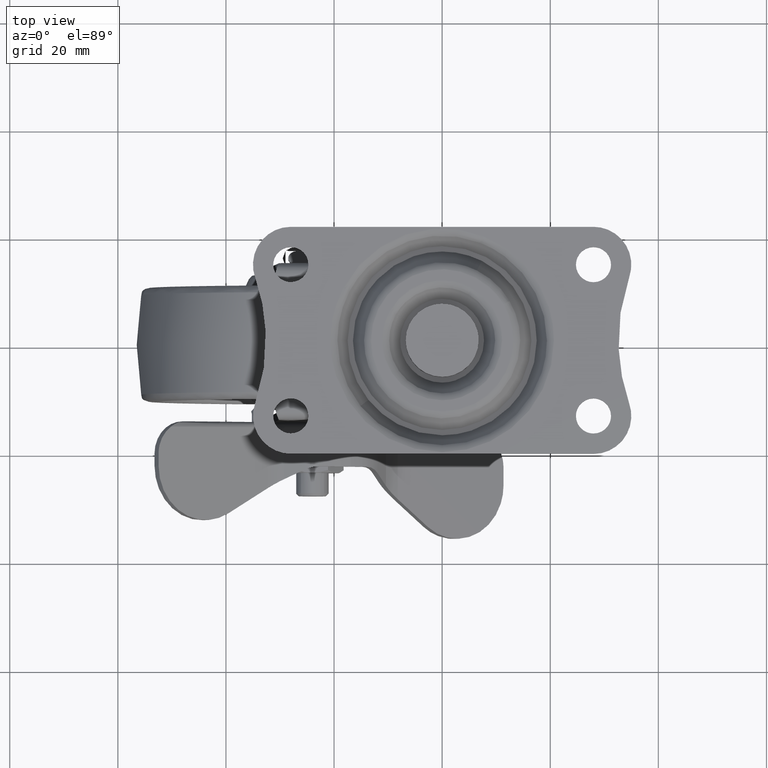
[diagram: clean part render]
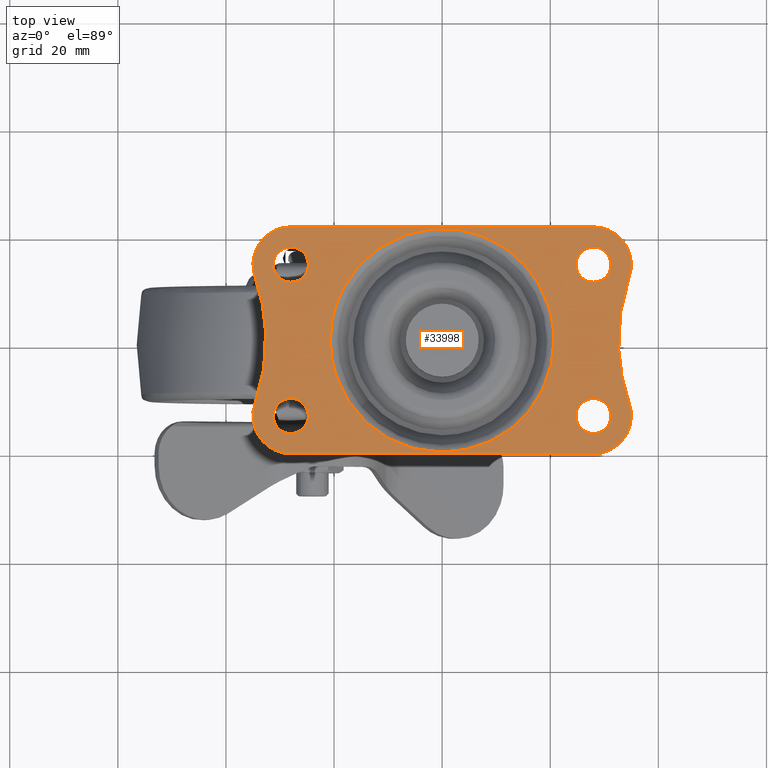
[diagram: same view with one face highlighted and labeled with its STEP entity id]
A machine part, top view. The second image highlights one B-rep face of the part: STEP entity #33998.
In plain terms, the highlighted face is a freeform B-spline surface patch.
Its self-contained STEP definition (entity closure, byte-faithful):
#27228=CARTESIAN_POINT('',(-30.098661759313249,16.481556132544569,1.499999999999946));
#27229=VERTEX_POINT('',#27228);
#27235=CARTESIAN_POINT('',(-31.249999800000001,14.0,1.499999999999946));
#27236=VERTEX_POINT('',#27235);
#27237=CARTESIAN_POINT('',(-30.098661759313249,16.481556132544569,1.499999999999946));
#27238=CARTESIAN_POINT('',(-30.289594237411581,16.320154293249061,1.499999999999947));
#27239=CARTESIAN_POINT('',(-30.623752231378621,15.963778604898430,1.499999999999943));
#27240=CARTESIAN_POINT('',(-30.974920071749391,15.363702581150390,1.499999999999943));
#27241=CARTESIAN_POINT('',(-31.197124987303312,14.705887535537650,1.499999999999956));
#27242=CARTESIAN_POINT('',(-31.250053074161389,14.250012150224620,1.499999999999941));
#27243=CARTESIAN_POINT('',(-31.249999800000001,14.0,1.499999999999946));
#27244=B_SPLINE_CURVE_WITH_KNOTS('',3,(#27237,#27238,#27239,#27240,#27241,#27242,#27243),.UNSPECIFIED.,.F.,.U.,(4,1,1,1,4),(0.000000054423092,0.750026321992885,1.455906029096063,2.073600820210960,2.823627087781163),.UNSPECIFIED.);
#27245=EDGE_CURVE('',#27229,#27236,#27244,.T.);
#27247=CARTESIAN_POINT('',(-27.999997928806089,10.750000200000660,1.499999999999946));
#27248=VERTEX_POINT('',#27247);
#27249=CARTESIAN_POINT('',(-31.249999800000001,14.0,1.499999999999946));
#27250=CARTESIAN_POINT('',(-31.250184525599611,13.654315834987971,1.499999999999946));
#27251=CARTESIAN_POINT('',(-31.168629431308140,13.149254880770741,1.499999999999947));
#27252=CARTESIAN_POINT('',(-30.893079888065120,12.484195588004100,1.499999999999947));
#27253=CARTESIAN_POINT('',(-30.578643457823169,11.987597755424479,1.499999999999945));
#27254=CARTESIAN_POINT('',(-30.136500463179491,11.523209991700501,1.499999999999948));
#27255=CARTESIAN_POINT('',(-29.612254228586071,11.153992996147981,1.499999999999942));
#27256=CARTESIAN_POINT('',(-28.903919822883601,10.839956242095861,1.499999999999953));
#27257=CARTESIAN_POINT('',(-28.345680067237780,10.749811561309039,1.499999999999937));
#27258=CARTESIAN_POINT('',(-27.999997928806089,10.750000200000660,1.499999999999946));
#27259=B_SPLINE_CURVE_WITH_KNOTS('',3,(#27249,#27250,#27251,#27252,#27253,#27254,#27255,#27256,#27257,#27258),.UNSPECIFIED.,.F.,.U.,(4,1,1,1,1,1,1,4),(0.000000086994697,1.036990327624215,1.515618314076126,2.153791717554028,2.791894719708033,3.430051568851688,4.068226782471074,5.105217022309462),.UNSPECIFIED.);
#27260=EDGE_CURVE('',#27236,#27248,#27259,.T.);
#27262=CARTESIAN_POINT('',(-24.750000199999999,14.0,1.499999999999946));
#27263=VERTEX_POINT('',#27262);
#27264=CARTESIAN_POINT('',(-27.999997928806089,10.750000200000660,1.499999999999946));
#27265=CARTESIAN_POINT('',(-27.654315511227459,10.749812278349269,1.499999999999945));
#27266=CARTESIAN_POINT('',(-27.096079022728311,10.839954147837460,1.499999999999947));
#27267=CARTESIAN_POINT('',(-26.387738840174130,11.153997100902471,1.499999999999946));
#27268=CARTESIAN_POINT('',(-25.863501423968259,11.523205239792439,1.499999999999949));
#27269=CARTESIAN_POINT('',(-25.421350830321810,11.987600571720860,1.499999999999942));
#27270=CARTESIAN_POINT('',(-25.106918182389879,12.484195088063791,1.499999999999956));
#27271=CARTESIAN_POINT('',(-24.831370970281601,13.149254035125100,1.499999999999940));
#27272=CARTESIAN_POINT('',(-24.749814484360758,13.654317157090130,1.499999999999949));
#27273=CARTESIAN_POINT('',(-24.750000199999999,14.0,1.499999999999946));
#27274=B_SPLINE_CURVE_WITH_KNOTS('',3,(#27264,#27265,#27266,#27267,#27268,#27269,#27270,#27271,#27272,#27273),.UNSPECIFIED.,.F.,.U.,(4,1,1,1,1,1,1,4),(0.000000089835869,1.036989855547969,1.675164777407963,2.313321333277914,2.951424042725895,3.589597153540688,4.068224921029611,5.105214687532925),.UNSPECIFIED.);
#27275=EDGE_CURVE('',#27248,#27263,#27274,.T.);
#27277=CARTESIAN_POINT('',(-25.642533914758179,16.237151983182429,1.499999999999946));
#27278=VERTEX_POINT('',#27277);
#27279=CARTESIAN_POINT('',(-24.750000199999999,14.0,1.499999999999946));
#27280=CARTESIAN_POINT('',(-24.749812915471310,14.334165562678439,1.499999999999946));
#27281=CARTESIAN_POINT('',(-24.834026930013131,14.873795731367821,1.499999999999947));
#27282=CARTESIAN_POINT('',(-25.158316644193729,15.633702982772739,1.499999999999946));
#27283=CARTESIAN_POINT('',(-25.447844304890332,16.032118625284639,1.499999999999945));
#27284=CARTESIAN_POINT('',(-25.642533914758179,16.237151983182429,1.499999999999946));
#27285=B_SPLINE_CURVE_WITH_KNOTS('',3,(#27279,#27280,#27281,#27282,#27283,#27284),.UNSPECIFIED.,.F.,.U.,(4,1,1,4),(0.000000029991058,1.002438272913163,1.619299686799069,2.467516887361315),.UNSPECIFIED.);
#27286=EDGE_CURVE('',#27263,#27278,#27285,.T.);
#27371=CARTESIAN_POINT('',(-28.000002071193940,17.249999799999340,1.499999999999946));
#27372=VERTEX_POINT('',#27371);
#27373=CARTESIAN_POINT('',(-25.642533914758179,16.237151983182429,1.499999999999946));
#27374=CARTESIAN_POINT('',(-25.812715970527329,16.416558056461071,1.499999999999950));
#27375=CARTESIAN_POINT('',(-26.173112256698939,16.718425344399531,1.499999999999940));
#27376=CARTESIAN_POINT('',(-26.956197425681300,17.128107174417458,1.499999999999954));
#27377=CARTESIAN_POINT('',(-27.587795603666478,17.250424369698319,1.499999999999939));
#27378=CARTESIAN_POINT('',(-28.000002071193940,17.249999799999340,1.499999999999946));
#27379=B_SPLINE_CURVE_WITH_KNOTS('',3,(#27373,#27374,#27375,#27376,#27377,#27378),.UNSPECIFIED.,.F.,.U.,(4,1,1,4),(0.000000023109830,0.741853484221563,1.401278179557500,2.637701058364158),.UNSPECIFIED.);
#27380=EDGE_CURVE('',#27278,#27372,#27379,.T.);
#27382=CARTESIAN_POINT('',(-28.000002071193940,17.249999799999340,1.499999999999946));
#27383=CARTESIAN_POINT('',(-28.213892175693019,17.250021494945042,1.499999999999946));
#27384=CARTESIAN_POINT('',(-28.665423814772701,17.205277089497809,1.499999999999948));
#27385=CARTESIAN_POINT('',(-29.394725705898889,16.974042795621362,1.499999999999943));
#27386=CARTESIAN_POINT('',(-29.862817059486641,16.681141609984468,1.499999999999947));
#27387=CARTESIAN_POINT('',(-30.098661759313249,16.481556132544569,1.499999999999946));
#27388=B_SPLINE_CURVE_WITH_KNOTS('',3,(#27382,#27383,#27384,#27385,#27386,#27387),.UNSPECIFIED.,.F.,.U.,(4,1,1,4),(0.000000032594363,0.641680229335874,1.354642996717356,2.281526408582084),.UNSPECIFIED.);
#27389=EDGE_CURVE('',#27372,#27229,#27388,.T.);
#27435=CARTESIAN_POINT('',(-30.098661759313249,-11.518451867455290,1.499999999999946));
#27436=VERTEX_POINT('',#27435);
#27442=CARTESIAN_POINT('',(-31.249999800000001,-14.000007999999861,1.499999999999946));
#27443=VERTEX_POINT('',#27442);
#27444=CARTESIAN_POINT('',(-30.098661759313249,-11.518451867455290,1.499999999999946));
#27445=CARTESIAN_POINT('',(-30.267107771181099,-11.660883446761471,1.499999999999946));
#27446=CARTESIAN_POINT('',(-30.605661424508920,-12.012113388912050,1.499999999999948));
#27447=CARTESIAN_POINT('',(-30.965468887856410,-12.608308317754400,1.499999999999943));
#27448=CARTESIAN_POINT('',(-31.197128128382509,-13.294119689958480,1.499999999999956));
#27449=CARTESIAN_POINT('',(-31.250051592581219,-13.749996320551890,1.499999999999939));
#27450=CARTESIAN_POINT('',(-31.249999800000001,-14.000007999999861,1.499999999999946));
#27451=B_SPLINE_CURVE_WITH_KNOTS('',3,(#27444,#27445,#27446,#27447,#27448,#27449,#27450),.UNSPECIFIED.,.F.,.U.,(4,1,1,1,4),(0.000000054425447,0.661787303533556,1.455906029096571,2.073600820211106,2.823627087781160),.UNSPECIFIED.);
#27452=EDGE_CURVE('',#27436,#27443,#27451,.T.);
#27454=CARTESIAN_POINT('',(-27.999997928806089,-17.250007799999199,1.499999999999946));
#27455=VERTEX_POINT('',#27454);
#27456=CARTESIAN_POINT('',(-31.249999800000001,-14.000007999999861,1.499999999999946));
#27457=CARTESIAN_POINT('',(-31.250024498893080,-14.212710222109090,1.499999999999945));
#27458=CARTESIAN_POINT('',(-31.205478234679500,-14.664721032946950,1.499999999999947));
#27459=CARTESIAN_POINT('',(-30.987390759531550,-15.353302889201570,1.499999999999946));
#27460=CARTESIAN_POINT('',(-30.560490652122930,-16.065709442088309,1.499999999999948));
#27461=CARTESIAN_POINT('',(-29.976489319201921,-16.621677681362410,1.499999999999942));
#27462=CARTESIAN_POINT('',(-29.302278756384471,-17.003532988793360,1.499999999999950));
#27463=CARTESIAN_POINT('',(-28.664709948475849,-17.205488209646440,1.499999999999953));
#27464=CARTESIAN_POINT('',(-28.212700803627779,-17.250032910567370,1.499999999999929));
#27465=CARTESIAN_POINT('',(-27.999997928806089,-17.250007799999199,1.499999999999946));
#27466=B_SPLINE_CURVE_WITH_KNOTS('',3,(#27456,#27457,#27458,#27459,#27460,#27461,#27462,#27463,#27464,#27465),.UNSPECIFIED.,.F.,.U.,(4,1,1,1,1,1,1,4),(0.000000086997925,0.638124658410064,1.356074064954921,2.153791717555712,3.110962394410122,3.749143044737871,4.467092451277877,5.105217022309413),.UNSPECIFIED.);
#27467=EDGE_CURVE('',#27443,#27455,#27466,.T.);
#27469=CARTESIAN_POINT('',(-24.750000199999999,-14.000007999999861,1.499999999999946));
#27470=VERTEX_POINT('',#27469);
#27471=CARTESIAN_POINT('',(-27.999997928806089,-17.250007799999199,1.499999999999946));
#27472=CARTESIAN_POINT('',(-27.707516701486341,-17.250104416484469,1.499999999999947));
#27473=CARTESIAN_POINT('',(-27.202369066619479,-17.181340585061541,1.499999999999947));
#27474=CARTESIAN_POINT('',(-26.579205634243358,-16.940909266713060,1.499999999999946));
#27475=CARTESIAN_POINT('',(-25.984568161577162,-16.584612777350831,1.499999999999947));
#27476=CARTESIAN_POINT('',(-25.478433132207030,-16.102791430963549,1.499999999999943));
#27477=CARTESIAN_POINT('',(-25.106934802206951,-15.515794464587310,1.499999999999950));
#27478=CARTESIAN_POINT('',(-24.831372623470980,-14.850751233366910,1.499999999999946));
#27479=CARTESIAN_POINT('',(-24.749813946070990,-14.345691775458979,1.499999999999946));
#27480=CARTESIAN_POINT('',(-24.750000199999999,-14.000007999999861,1.499999999999946));
#27481=B_SPLINE_CURVE_WITH_KNOTS('',3,(#27471,#27472,#27473,#27474,#27475,#27476,#27477,#27478,#27479,#27480),.UNSPECIFIED.,.F.,.U.,(4,1,1,1,1,1,1,4),(0.000000089835841,0.877442701142752,1.515617622918524,1.994253805430586,2.951424042725838,3.589597153540647,4.068224921029596,5.105214687532926),.UNSPECIFIED.);
#27482=EDGE_CURVE('',#27455,#27470,#27481,.T.);
#27484=CARTESIAN_POINT('',(-25.642533914758179,-11.762856016817430,1.499999999999946));
#27485=VERTEX_POINT('',#27484);
#27486=CARTESIAN_POINT('',(-24.750000199999999,-14.000007999999861,1.499999999999946));
#27487=CARTESIAN_POINT('',(-24.749920988199420,-13.717266933189009,1.499999999999948));
#27488=CARTESIAN_POINT('',(-24.820872001588430,-13.177559219943269,1.499999999999944));
#27489=CARTESIAN_POINT('',(-25.127792950922089,-12.408218243198659,1.499999999999947));
#27490=CARTESIAN_POINT('',(-25.447860745877801,-11.967901674671070,1.499999999999947));
#27491=CARTESIAN_POINT('',(-25.642533914758179,-11.762856016817430,1.499999999999946));
#27492=B_SPLINE_CURVE_WITH_KNOTS('',3,(#27486,#27487,#27488,#27489,#27490,#27491),.UNSPECIFIED.,.F.,.U.,(4,1,1,4),(0.000000029990713,0.848217230607003,1.619299686798971,2.467516887361312),.UNSPECIFIED.);
#27493=EDGE_CURVE('',#27470,#27485,#27492,.T.);
#27577=CARTESIAN_POINT('',(-28.000002071193940,-10.750008200000520,1.499999999999946));
#27578=VERTEX_POINT('',#27577);
#27579=CARTESIAN_POINT('',(-25.642533914758179,-11.762856016817430,1.499999999999946));
#27580=CARTESIAN_POINT('',(-25.812716261999221,-11.583448340737000,1.499999999999949));
#27581=CARTESIAN_POINT('',(-26.173112427896740,-11.281583253363159,1.499999999999942));
#27582=CARTESIAN_POINT('',(-26.956197747361930,-10.871900470533649,1.499999999999953));
#27583=CARTESIAN_POINT('',(-27.587794571794561,-10.749583842618760,1.499999999999942));
#27584=CARTESIAN_POINT('',(-28.000002071193940,-10.750008200000520,1.499999999999946));
#27585=B_SPLINE_CURVE_WITH_KNOTS('',3,(#27579,#27580,#27581,#27582,#27583,#27584),.UNSPECIFIED.,.F.,.U.,(4,1,1,4),(0.000000023110223,0.741853484221908,1.401278179557704,2.637701058364167),.UNSPECIFIED.);
#27586=EDGE_CURVE('',#27485,#27578,#27585,.T.);
#27588=CARTESIAN_POINT('',(-28.000002071193940,-10.750008200000520,1.499999999999946));
#27589=CARTESIAN_POINT('',(-28.261424753598209,-10.749964186063711,1.499999999999946));
#27590=CARTESIAN_POINT('',(-28.808024957539981,-10.816267383801870,1.499999999999948));
#27591=CARTESIAN_POINT('',(-29.522385054004690,-11.095751268702010,1.499999999999946));
#27592=CARTESIAN_POINT('',(-29.935354925129239,-11.380328294928940,1.499999999999946));
#27593=CARTESIAN_POINT('',(-30.098661759313249,-11.518451867455290,1.499999999999946));
#27594=B_SPLINE_CURVE_WITH_KNOTS('',3,(#27588,#27589,#27590,#27591,#27592,#27593),.UNSPECIFIED.,.F.,.U.,(4,1,1,4),(0.000000032594146,0.784282458853431,1.639846211801305,2.281526408582081),.UNSPECIFIED.);
#27595=EDGE_CURVE('',#27578,#27436,#27594,.T.);
#27641=CARTESIAN_POINT('',(25.901338240686758,16.481556132544569,1.499999999999946));
#27642=VERTEX_POINT('',#27641);
#27648=CARTESIAN_POINT('',(24.750000199999999,14.0,1.499999999999946));
#27649=VERTEX_POINT('',#27648);
#27650=CARTESIAN_POINT('',(25.901338240686758,16.481556132544569,1.499999999999946));
#27651=CARTESIAN_POINT('',(25.710422929661899,16.320145995794210,1.499999999999948));
#27652=CARTESIAN_POINT('',(25.325547644274131,15.909815889676270,1.499999999999946));
#27653=CARTESIAN_POINT('',(24.873354134004661,15.073445826126919,1.499999999999951));
#27654=CARTESIAN_POINT('',(24.749764664998992,14.382380993495939,1.499999999999943));
#27655=CARTESIAN_POINT('',(24.750000199999999,14.0,1.499999999999946));
#27656=B_SPLINE_CURVE_WITH_KNOTS('',3,(#27650,#27651,#27652,#27653,#27654,#27655),.UNSPECIFIED.,.F.,.U.,(4,1,1,4),(0.000000054423500,0.750026321993088,1.676517445520383,2.823627087781192),.UNSPECIFIED.);
#27657=EDGE_CURVE('',#27642,#27649,#27656,.T.);
#27659=CARTESIAN_POINT('',(28.000002071193919,10.750000200000660,1.499999999999946));
#27660=VERTEX_POINT('',#27659);
#27661=CARTESIAN_POINT('',(24.750000199999999,14.0,1.499999999999946));
#27662=CARTESIAN_POINT('',(24.749964324688730,13.734122412694759,1.499999999999944));
#27663=CARTESIAN_POINT('',(24.825345004103031,13.122533548219881,1.499999999999954));
#27664=CARTESIAN_POINT('',(25.154170805541678,12.355282499721460,1.499999999999938));
#27665=CARTESIAN_POINT('',(25.631062808752642,11.744574838208511,1.499999999999957));
#27666=CARTESIAN_POINT('',(26.197412936153750,11.255800756192009,1.499999999999932));
#27667=CARTESIAN_POINT('',(26.989702136551330,10.857052531259480,1.499999999999952));
#27668=CARTESIAN_POINT('',(27.654328806535808,10.749823255927010,1.499999999999941));
#27669=CARTESIAN_POINT('',(28.000002071193919,10.750000200000660,1.499999999999946));
#27670=B_SPLINE_CURVE_WITH_KNOTS('',3,(#27661,#27662,#27663,#27664,#27665,#27666,#27667,#27668,#27669),.UNSPECIFIED.,.F.,.U.,(4,1,1,1,1,1,4),(0.000000086997127,0.797669561099499,1.834712010842125,2.472847485333932,3.110962394409981,4.068226782471383,5.105217022309443),.UNSPECIFIED.);
#27671=EDGE_CURVE('',#27649,#27660,#27670,.T.);
#27673=CARTESIAN_POINT('',(31.249999800000001,14.0,1.499999999999946));
#27674=VERTEX_POINT('',#27673);
#27675=CARTESIAN_POINT('',(28.000002071193919,10.750000200000660,1.499999999999946));
#27676=CARTESIAN_POINT('',(28.345683846445830,10.749811392389089,1.499999999999945));
#27677=CARTESIAN_POINT('',(28.903921509406970,10.839953551812110,1.499999999999950));
#27678=CARTESIAN_POINT('',(29.612260950656331,11.153997170427060,1.499999999999943));
#27679=CARTESIAN_POINT('',(30.136498602030411,11.523205367502319,1.499999999999950));
#27680=CARTESIAN_POINT('',(30.578649288227279,11.987600552332550,1.499999999999947));
#27681=CARTESIAN_POINT('',(30.893081695395811,12.484195102421060,1.499999999999942));
#27682=CARTESIAN_POINT('',(31.168629202465809,13.149254176614610,1.499999999999949));
#27683=CARTESIAN_POINT('',(31.250184762246189,13.654316901641099,1.499999999999946));
#27684=CARTESIAN_POINT('',(31.249999800000001,14.0,1.499999999999946));
#27685=B_SPLINE_CURVE_WITH_KNOTS('',3,(#27675,#27676,#27677,#27678,#27679,#27680,#27681,#27682,#27683,#27684),.UNSPECIFIED.,.F.,.U.,(4,1,1,1,1,1,1,4),(0.000000089835341,1.036989855547769,1.675164777407900,2.313321333277830,2.951424042725770,3.589597153540592,4.068224921029560,5.105214687532921),.UNSPECIFIED.);
#27686=EDGE_CURVE('',#27660,#27674,#27685,.T.);
#27688=CARTESIAN_POINT('',(30.357466085241821,16.237151983182429,1.499999999999946));
#27689=VERTEX_POINT('',#27688);
#27690=CARTESIAN_POINT('',(31.249999800000001,14.0,1.499999999999946));
#27691=CARTESIAN_POINT('',(31.250302336830512,14.385577738349030,1.499999999999943));
#27692=CARTESIAN_POINT('',(31.101848783783169,15.207840532212590,1.499999999999951));
#27693=CARTESIAN_POINT('',(30.658642386641802,15.920481839178381,1.499999999999946));
#27694=CARTESIAN_POINT('',(30.357466085241821,16.237151983182429,1.499999999999946));
#27695=B_SPLINE_CURVE_WITH_KNOTS('',3,(#27690,#27691,#27692,#27693,#27694),.UNSPECIFIED.,.F.,.U.,(4,1,4),(0.000000029991093,1.156653471518189,2.467516887361310),.UNSPECIFIED.);
#27696=EDGE_CURVE('',#27674,#27689,#27695,.T.);
#27780=CARTESIAN_POINT('',(27.999997928806049,17.249999799999340,1.499999999999946));
#27781=VERTEX_POINT('',#27780);
#27782=CARTESIAN_POINT('',(30.357466085241821,16.237151983182429,1.499999999999946));
#27783=CARTESIAN_POINT('',(30.111747985467190,16.496432272610711,1.499999999999947));
#27784=CARTESIAN_POINT('',(29.644785894699840,16.848487616258801,1.499999999999946));
#27785=CARTESIAN_POINT('',(28.824205812873199,17.176645641816211,1.499999999999947));
#27786=CARTESIAN_POINT('',(28.302235584904292,17.250099747547100,1.499999999999946));
#27787=CARTESIAN_POINT('',(27.999997928806049,17.249999799999340,1.499999999999946));
#27788=B_SPLINE_CURVE_WITH_KNOTS('',3,(#27782,#27783,#27784,#27785,#27786,#27787),.UNSPECIFIED.,.F.,.U.,(4,1,1,4),(0.000000023110382,1.071566757086633,1.730990976169198,2.637701058364169),.UNSPECIFIED.);
#27789=EDGE_CURVE('',#27689,#27781,#27788,.T.);
#27791=CARTESIAN_POINT('',(27.999997928806049,17.249999799999340,1.499999999999946));
#27792=CARTESIAN_POINT('',(27.643485567640671,17.250226867642560,1.499999999999946));
#27793=CARTESIAN_POINT('',(26.883164911617801,17.123519539950390,1.499999999999949));
#27794=CARTESIAN_POINT('',(26.209608183168729,16.742793246567739,1.499999999999945));
#27795=CARTESIAN_POINT('',(25.901338240686758,16.481556132544569,1.499999999999946));
#27796=B_SPLINE_CURVE_WITH_KNOTS('',3,(#27791,#27792,#27793,#27794,#27795),.UNSPECIFIED.,.F.,.U.,(4,1,4),(0.000000032595400,1.069474197427093,2.281526408582072),.UNSPECIFIED.);
#27797=EDGE_CURVE('',#27781,#27642,#27796,.T.);
#27842=CARTESIAN_POINT('',(25.901338240686758,-11.518443867455430,1.499999999999946));
#27843=VERTEX_POINT('',#27842);
#27849=CARTESIAN_POINT('',(24.750000199999999,-14.0,1.499999999999946));
#27850=VERTEX_POINT('',#27849);
#27851=CARTESIAN_POINT('',(25.901338240686758,-11.518443867455430,1.499999999999946));
#27852=CARTESIAN_POINT('',(25.710422785933609,-11.679854323152581,1.499999999999946));
#27853=CARTESIAN_POINT('',(25.325547433909790,-12.090184039352540,1.499999999999947));
#27854=CARTESIAN_POINT('',(24.873354521727300,-12.926554293742351,1.499999999999943));
#27855=CARTESIAN_POINT('',(24.749764402500659,-13.617618771119639,1.499999999999946));
#27856=CARTESIAN_POINT('',(24.750000199999999,-14.0,1.499999999999946));
#27857=B_SPLINE_CURVE_WITH_KNOTS('',3,(#27851,#27852,#27853,#27854,#27855,#27856),.UNSPECIFIED.,.F.,.U.,(4,1,1,4),(0.000000054424850,0.750026321994178,1.676517445521048,2.823627087781166),.UNSPECIFIED.);
#27858=EDGE_CURVE('',#27843,#27850,#27857,.T.);
#27860=CARTESIAN_POINT('',(28.000002071193919,-17.249999799999340,1.499999999999946));
#27861=VERTEX_POINT('',#27860);
#27862=CARTESIAN_POINT('',(24.750000199999999,-14.0,1.499999999999946));
#27863=CARTESIAN_POINT('',(24.749690156158010,-14.398887600713760,1.499999999999947));
#27864=CARTESIAN_POINT('',(24.864002583740248,-15.010180519010380,1.499999999999950));
#27865=CARTESIAN_POINT('',(25.236555835370339,-15.749959587246220,1.499999999999941));
#27866=CARTESIAN_POINT('',(25.631021701369828,-16.255453156034879,1.499999999999951));
#27867=CARTESIAN_POINT('',(26.116554948467599,-16.674279872636710,1.499999999999952));
#27868=CARTESIAN_POINT('',(26.697712801534230,-17.003528348518302,1.499999999999941));
#27869=CARTESIAN_POINT('',(27.335290031218559,-17.205489819433751,1.499999999999947));
#27870=CARTESIAN_POINT('',(27.787297622994188,-17.250019016880280,1.499999999999945));
#27871=CARTESIAN_POINT('',(28.000002071193919,-17.249999799999340,1.499999999999946));
#27872=B_SPLINE_CURVE_WITH_KNOTS('',3,(#27862,#27863,#27864,#27865,#27866,#27867,#27868,#27869,#27870,#27871),.UNSPECIFIED.,.F.,.U.,(4,1,1,1,1,1,1,4),(0.000000086994818,1.196534576734507,1.834712010840635,2.472847485332700,3.110962394409103,3.749143044737235,4.467092451277671,5.105217022309441),.UNSPECIFIED.);
#27873=EDGE_CURVE('',#27850,#27861,#27872,.T.);
#27875=CARTESIAN_POINT('',(31.249999800000001,-14.0,1.499999999999946));
#27876=VERTEX_POINT('',#27875);
#27877=CARTESIAN_POINT('',(28.000002071193919,-17.249999799999340,1.499999999999946));
#27878=CARTESIAN_POINT('',(28.345684221596660,-17.250188922250171,1.499999999999946));
#27879=CARTESIAN_POINT('',(28.903920978834741,-17.160045139273471,1.499999999999949));
#27880=CARTESIAN_POINT('',(29.612261094512029,-16.846003184674821,1.499999999999944));
#27881=CARTESIAN_POINT('',(30.136498642621639,-16.476794968518920,1.499999999999951));
#27882=CARTESIAN_POINT('',(30.578649422701101,-16.012398369596109,1.499999999999944));
#27883=CARTESIAN_POINT('',(30.893081329325401,-15.515806416079950,1.499999999999946));
#27884=CARTESIAN_POINT('',(31.168630146038570,-14.850743686279360,1.499999999999945));
#27885=CARTESIAN_POINT('',(31.250184221094660,-14.345684786529350,1.499999999999949));
#27886=CARTESIAN_POINT('',(31.249999800000001,-14.0,1.499999999999946));
#27887=B_SPLINE_CURVE_WITH_KNOTS('',3,(#27877,#27878,#27879,#27880,#27881,#27882,#27883,#27884,#27885,#27886),.UNSPECIFIED.,.F.,.U.,(4,1,1,1,1,1,1,4),(0.000000089836025,1.036989855547883,1.675164777407911,2.313321333277967,2.951424042725997,3.589597153540778,4.068224921029691,5.105214687532920),.UNSPECIFIED.);
#27888=EDGE_CURVE('',#27861,#27876,#27887,.T.);
#27890=CARTESIAN_POINT('',(30.357466085241821,-11.762848016817580,1.499999999999946));
#27891=VERTEX_POINT('',#27890);
#27892=CARTESIAN_POINT('',(31.249999800000001,-14.0,1.499999999999946));
#27893=CARTESIAN_POINT('',(31.250166840256149,-13.665839676142170,1.499999999999946));
#27894=CARTESIAN_POINT('',(31.165988369880580,-13.126200264615701,1.499999999999944));
#27895=CARTESIAN_POINT('',(30.841683954366349,-12.366297575577480,1.499999999999949));
#27896=CARTESIAN_POINT('',(30.552153154569599,-11.967882104372270,1.499999999999943));
#27897=CARTESIAN_POINT('',(30.357466085241821,-11.762848016817580,1.499999999999946));
#27898=B_SPLINE_CURVE_WITH_KNOTS('',3,(#27892,#27893,#27894,#27895,#27896,#27897),.UNSPECIFIED.,.F.,.U.,(4,1,1,4),(0.000000029991174,1.002438272913224,1.619299686799063,2.467516887361312),.UNSPECIFIED.);
#27899=EDGE_CURVE('',#27876,#27891,#27898,.T.);
#27984=CARTESIAN_POINT('',(27.999997928806049,-10.750000200000660,1.499999999999946));
#27985=VERTEX_POINT('',#27984);
#27986=CARTESIAN_POINT('',(30.357466085241821,-11.762848016817580,1.499999999999946));
#27987=CARTESIAN_POINT('',(30.111747091439021,-11.503569861647380,1.499999999999947));
#27988=CARTESIAN_POINT('',(29.644785850986729,-11.151511395220931,1.499999999999946));
#27989=CARTESIAN_POINT('',(28.824206074970270,-10.823355564237580,1.499999999999945));
#27990=CARTESIAN_POINT('',(28.302235459515440,-10.749899710109830,1.499999999999947));
#27991=CARTESIAN_POINT('',(27.999997928806049,-10.750000200000660,1.499999999999946));
#27992=B_SPLINE_CURVE_WITH_KNOTS('',3,(#27986,#27987,#27988,#27989,#27990,#27991),.UNSPECIFIED.,.F.,.U.,(4,1,1,4),(0.000000023110578,1.071566757086740,1.730990976169270,2.637701058364173),.UNSPECIFIED.);
#27993=EDGE_CURVE('',#27891,#27985,#27992,.T.);
#27995=CARTESIAN_POINT('',(27.999997928806049,-10.750000200000660,1.499999999999946));
#27996=CARTESIAN_POINT('',(27.643488279618360,-10.749799189090670,1.499999999999945));
#27997=CARTESIAN_POINT('',(26.883160724725890,-10.876434887534970,1.499999999999947));
#27998=CARTESIAN_POINT('',(26.209615640252210,-11.257234048003960,1.499999999999946));
#27999=CARTESIAN_POINT('',(25.901338240686758,-11.518443867455430,1.499999999999946));
#28000=B_SPLINE_CURVE_WITH_KNOTS('',3,(#27995,#27996,#27997,#27998,#27999),.UNSPECIFIED.,.F.,.U.,(4,1,4),(0.000000032595358,1.069474197427007,2.281526408582079),.UNSPECIFIED.);
#28001=EDGE_CURVE('',#27985,#27843,#28000,.T.);
#31412=CARTESIAN_POINT('',(-18.263908657645331,9.743827620979936,1.500000000000000));
#31413=VERTEX_POINT('',#31412);
#31424=CARTESIAN_POINT('',(-20.700544344917251,0.0,1.500000000000000));
#31425=VERTEX_POINT('',#31424);
#31426=CARTESIAN_POINT('',(-20.700544344917251,0.0,1.500000000000000));
#31427=CARTESIAN_POINT('',(-20.700607347679831,1.056783349009629,1.500000000000004));
#31428=CARTESIAN_POINT('',(-20.554541499019109,2.958966790348559,1.499999999999996));
#31429=CARTESIAN_POINT('',(-19.833737765196400,6.269469156884984,1.500000000000003));
#31430=CARTESIAN_POINT('',(-18.960533190852470,8.438575754220977,1.500000000000000));
#31431=CARTESIAN_POINT('',(-18.263908657645331,9.743827620979936,1.500000000000000));
#31432=B_SPLINE_CURVE_WITH_KNOTS('',3,(#31426,#31427,#31428,#31429,#31430,#31431),.UNSPECIFIED.,.F.,.U.,(4,1,1,4),(8.026463E-009,3.170350863996434,5.706631200999644,10.145122561123401),.UNSPECIFIED.);
#31433=EDGE_CURVE('',#31425,#31413,#31432,.T.);
#31435=CARTESIAN_POINT('',(-0.000001683902148,-20.700544344917180,1.500000000000000));
#31436=VERTEX_POINT('',#31435);
#31437=CARTESIAN_POINT('',(-0.000001683902148,-20.700544344917180,1.500000000000000));
#31438=CARTESIAN_POINT('',(-1.651264222033004,-20.700906024418551,1.500000000000006));
#31439=CARTESIAN_POINT('',(-4.233717898146389,-20.389803362532160,1.499999999999991));
#31440=CARTESIAN_POINT('',(-7.915090251529099,-19.223520304251931,1.500000000000008));
#31441=CARTESIAN_POINT('',(-10.611543764299700,-17.866238718702011,1.500000000000006));
#31442=CARTESIAN_POINT('',(-13.241102512731180,-16.002168246296311,1.499999999999981));
#31443=CARTESIAN_POINT('',(-15.308638175591881,-14.045768477263980,1.500000000000041));
#31444=CARTESIAN_POINT('',(-17.011914086329060,-11.876883929182039,1.499999999999939));
#31445=CARTESIAN_POINT('',(-18.251181791222489,-9.851754280649042,1.500000000000058));
#31446=CARTESIAN_POINT('',(-19.393446182536099,-7.436839852938042,1.499999999999962));
#31447=CARTESIAN_POINT('',(-20.412878151396370,-4.149143571773118,1.500000000000021));
#31448=CARTESIAN_POINT('',(-20.700796986764459,-1.481877893136902,1.499999999999994));
#31449=CARTESIAN_POINT('',(-20.700544344917251,0.0,1.500000000000000));
#31450=B_SPLINE_CURVE_WITH_KNOTS('',3,(#31437,#31438,#31439,#31440,#31441,#31442,#31443,#31444,#31445,#31446,#31447,#31448,#31449),.UNSPECIFIED.,.F.,.U.,(4,1,1,1,1,1,1,1,1,1,4),(0.000000079987224,4.953663131727502,7.748045433112722,11.558580944889449,13.971893438081640,17.401303458717081,20.068708561221129,22.227998630919540,24.514309751413201,28.070793426337101,32.516389079274617),.UNSPECIFIED.);
#31451=EDGE_CURVE('',#31436,#31425,#31450,.T.);
#31453=CARTESIAN_POINT('',(20.700544344917251,0.0,1.500000000000000));
#31454=VERTEX_POINT('',#31453);
#31455=CARTESIAN_POINT('',(20.700544344917251,0.0,1.500000000000000));
#31456=CARTESIAN_POINT('',(20.700617729267289,-1.185479623922956,1.500000000000004));
#31457=CARTESIAN_POINT('',(20.481824160222949,-3.725827136864288,1.499999999999995));
#31458=CARTESIAN_POINT('',(19.596783468407050,-6.923962356773505,1.499999999999998));
#31459=CARTESIAN_POINT('',(18.168219505934431,-10.094111126035219,1.500000000000002));
#31460=CARTESIAN_POINT('',(16.474671263450940,-12.697350498727021,1.500000000000001));
#31461=CARTESIAN_POINT('',(14.343906213468150,-15.004975840771920,1.499999999999984));
#31462=CARTESIAN_POINT('',(12.229143330010389,-16.773366660135011,1.499999999999997));
#31463=CARTESIAN_POINT('',(9.938628874354519,-18.233728588048020,1.500000000000015));
#31464=CARTESIAN_POINT('',(7.507985083054375,-19.346956487290232,1.499999999999968));
#31465=CARTESIAN_POINT('',(4.233698684992318,-20.384480716009701,1.500000000000065));
#31466=CARTESIAN_POINT('',(1.735945000127464,-20.700990575760120,1.499999999999936));
#31467=CARTESIAN_POINT('',(-0.000001683902148,-20.700544344917180,1.500000000000000));
#31468=B_SPLINE_CURVE_WITH_KNOTS('',3,(#31455,#31456,#31457,#31458,#31459,#31460,#31461,#31462,#31463,#31464,#31465,#31466,#31467),.UNSPECIFIED.,.F.,.U.,(4,1,1,1,1,1,1,1,1,1,4),(0.000000079822293,3.556449160263252,7.621027037921270,9.907340626697511,13.971894252776870,16.893274223199128,19.306573472643070,22.227999928945909,25.022380098324859,27.308707883609280,32.516390977427783),.UNSPECIFIED.);
#31469=EDGE_CURVE('',#31454,#31436,#31468,.T.);
#31471=CARTESIAN_POINT('',(7.569829242379967,19.266816579700311,1.500000000000000));
#31472=VERTEX_POINT('',#31471);
#31473=CARTESIAN_POINT('',(7.569829242379967,19.266816579700311,1.500000000000000));
#31474=CARTESIAN_POINT('',(8.530320350452437,18.889501381424679,1.500000000000001));
#31475=CARTESIAN_POINT('',(10.336424621678910,18.018876296326759,1.500000000000000));
#31476=CARTESIAN_POINT('',(12.586769379984229,16.498998100180518,1.499999999999997));
#31477=CARTESIAN_POINT('',(14.585228031653520,14.761914679584081,1.500000000000006));
#31478=CARTESIAN_POINT('',(16.533678433393291,12.601189449072860,1.499999999999993));
#31479=CARTESIAN_POINT('',(18.223519882776110,9.992661467962703,1.499999999999990));
#31480=CARTESIAN_POINT('',(19.622346830074591,6.865589041145802,1.500000000000030));
#31481=CARTESIAN_POINT('',(20.493893638290778,3.611813425502563,1.499999999999979));
#31482=CARTESIAN_POINT('',(20.700621134640489,1.160937213439816,1.500000000000011));
#31483=CARTESIAN_POINT('',(20.700544344917251,0.0,1.500000000000000));
#31484=B_SPLINE_CURVE_WITH_KNOTS('',3,(#31473,#31474,#31475,#31476,#31477,#31478,#31479,#31480,#31481,#31482,#31483),.UNSPECIFIED.,.F.,.U.,(4,1,1,1,1,1,1,1,4),(0.000000025751184,3.095837402384724,5.998220310696478,8.126630124371197,11.029017939442150,14.705310959452900,17.414181552736569,21.284026345019750,24.766846874676919),.UNSPECIFIED.);
#31485=EDGE_CURVE('',#31472,#31454,#31484,.T.);
#31519=CARTESIAN_POINT('',(-18.263908657645331,9.743827620979936,1.500000000000000));
#31520=CARTESIAN_POINT('',(-17.581056059091729,11.024278881731661,1.500000000000005));
#31521=CARTESIAN_POINT('',(-16.320324073087701,12.885323459243081,1.499999999999994));
#31522=CARTESIAN_POINT('',(-13.864778707999770,15.483319257686910,1.500000000000007));
#31523=CARTESIAN_POINT('',(-11.094667464610900,17.633842665963719,1.499999999999987));
#31524=CARTESIAN_POINT('',(-7.816652133574911,19.274145042740230,1.500000000000028));
#31525=CARTESIAN_POINT('',(-4.282453556637901,20.353289813142471,1.499999999999980));
#31526=CARTESIAN_POINT('',(-1.077230878842178,20.767942594497011,1.500000000000011));
#31527=CARTESIAN_POINT('',(1.868640738590575,20.661163489310550,1.499999999999998));
#31528=CARTESIAN_POINT('',(4.625262100161440,20.244973552975949,1.500000000000002));
#31529=CARTESIAN_POINT('',(6.438260816143438,19.711537815353822,1.499999999999999));
#31530=CARTESIAN_POINT('',(7.569829242379967,19.266816579700311,1.500000000000000));
#31531=B_SPLINE_CURVE_WITH_KNOTS('',3,(#31519,#31520,#31521,#31522,#31523,#31524,#31525,#31526,#31527,#31528,#31529,#31530),.UNSPECIFIED.,.F.,.U.,(4,1,1,1,1,1,1,1,1,4),(0.000000066664313,4.353392998574815,6.706597397485229,10.707047545131910,14.825132931208170,17.648924353374039,21.767026998054700,24.473213753062328,26.473425366131959,30.120864087855061),.UNSPECIFIED.);
#31532=EDGE_CURVE('',#31413,#31472,#31531,.T.);
#33371=CARTESIAN_POINT('',(-3.580766839262390,20.999994360576999,1.500000000000000));
#33372=VERTEX_POINT('',#33371);
#33373=CARTESIAN_POINT('',(3.580759339263660,20.999995639421051,1.500000000000000));
#33374=VERTEX_POINT('',#33373);
#33375=CARTESIAN_POINT('',(-3.580766839262390,20.999994360576999,1.500000000000000));
#33376=CARTESIAN_POINT('',(3.580759339263660,20.999995639421051,1.500000000000000));
#33377=QUASI_UNIFORM_CURVE('',1,(#33375,#33376),.UNSPECIFIED.,.F.,.U.);
#33378=EDGE_CURVE('',#33372,#33374,#33377,.T.);
#33553=CARTESIAN_POINT('',(28.000003909537551,20.999999999999002,1.499999999999946));
#33554=VERTEX_POINT('',#33553);
#33560=CARTESIAN_POINT('',(34.612583487418703,11.703537585346320,1.499999999999946));
#33561=VERTEX_POINT('',#33560);
#33562=CARTESIAN_POINT('',(34.612583487418703,11.703537585346320,1.499999999999946));
#33563=CARTESIAN_POINT('',(34.749334734681071,12.097190659913720,1.499999999999948));
#33564=CARTESIAN_POINT('',(34.952214405878813,12.909010765371210,1.499999999999945));
#33565=CARTESIAN_POINT('',(35.030823894024849,14.091846091252050,1.499999999999947));
#33566=CARTESIAN_POINT('',(34.902277847131252,15.408927178278010,1.499999999999953));
#33567=CARTESIAN_POINT('',(34.531209126397947,16.648625051975340,1.499999999999941));
#33568=CARTESIAN_POINT('',(33.955244721493720,17.723590617121971,1.499999999999948));
#33569=CARTESIAN_POINT('',(33.296583966126477,18.621063858305352,1.499999999999945));
#33570=CARTESIAN_POINT('',(32.454435004447632,19.456516386189360,1.499999999999948));
#33571=CARTESIAN_POINT('',(31.264082402270340,20.249926844552551,1.499999999999944));
#33572=CARTESIAN_POINT('',(29.771002041456150,20.845444495117221,1.499999999999947));
#33573=CARTESIAN_POINT('',(28.625115750931140,21.000216465714409,1.499999999999946));
#33574=CARTESIAN_POINT('',(28.000003909537551,20.999999999999002,1.499999999999946));
#33575=B_SPLINE_CURVE_WITH_KNOTS('',3,(#33562,#33563,#33564,#33565,#33566,#33567,#33568,#33569,#33570,#33571,#33572,#33573,#33574),.UNSPECIFIED.,.F.,.U.,(4,1,1,1,1,1,1,1,1,1,4),(0.000000138378548,1.250194841345854,2.500401802336365,3.542242697693405,5.209190171440548,6.355242413325511,7.188610458835992,8.543016264843146,9.897427623652039,11.460207766821370,13.335482643498890),.UNSPECIFIED.);
#33576=EDGE_CURVE('',#33561,#33554,#33575,.T.);
#33614=CARTESIAN_POINT('',(34.609303948770297,-11.694115936832601,1.499999999999946));
#33615=VERTEX_POINT('',#33614);
#33616=CARTESIAN_POINT('',(34.612583487418703,11.703537585346320,1.499999999999946));
#33617=CARTESIAN_POINT('',(33.895893622367737,9.651881400074574,1.499999999999949));
#33618=CARTESIAN_POINT('',(32.976889798876996,5.960988469624034,1.499999999999942));
#33619=CARTESIAN_POINT('',(32.553487520046453,0.937646465079951,1.499999999999951));
#33620=CARTESIAN_POINT('',(32.699115997806409,-3.039047947281111,1.499999999999947));
#33621=CARTESIAN_POINT('',(33.264947941648437,-7.165232186138496,1.499999999999945));
#33622=CARTESIAN_POINT('',(34.016031870428513,-9.993983259842654,1.499999999999945));
#33623=CARTESIAN_POINT('',(34.609303948770297,-11.694115936832601,1.499999999999946));
#33624=B_SPLINE_CURVE_WITH_KNOTS('',3,(#33616,#33617,#33618,#33619,#33620,#33621,#33622,#33623),.UNSPECIFIED.,.F.,.U.,(4,1,1,1,1,4),(0.000000012535100,6.519657674479877,11.362833464721600,15.088343654576320,18.441316908871379,23.843318481318050),.UNSPECIFIED.);
#33625=EDGE_CURVE('',#33561,#33615,#33624,.T.);
#33668=CARTESIAN_POINT('',(28.0,-21.0,1.499999999999946));
#33669=VERTEX_POINT('',#33668);
#33670=CARTESIAN_POINT('',(28.0,-21.0,1.499999999999946));
#33671=CARTESIAN_POINT('',(28.417042745308098,-21.000040488874340,1.499999999999950));
#33672=CARTESIAN_POINT('',(29.251103981417170,-20.925230444616108,1.499999999999941));
#33673=CARTESIAN_POINT('',(30.630665761965670,-20.546415147690201,1.499999999999947));
#33674=CARTESIAN_POINT('',(31.870967684395929,-19.894273762383659,1.499999999999946));
#33675=CARTESIAN_POINT('',(32.917509260017930,-19.025766223923139,1.499999999999945));
#33676=CARTESIAN_POINT('',(33.625691308733813,-18.209096452706010,1.499999999999949));
#33677=CARTESIAN_POINT('',(34.222872109993510,-17.267973627335330,1.499999999999947));
#33678=CARTESIAN_POINT('',(34.708629178370003,-16.147510993926002,1.499999999999945));
#33679=CARTESIAN_POINT('',(35.022424847173333,-14.713827233261121,1.499999999999961));
#33680=CARTESIAN_POINT('',(35.010043851855343,-13.173841811184900,1.499999999999918));
#33681=CARTESIAN_POINT('',(34.769622056512532,-12.153492897811899,1.499999999999961));
#33682=CARTESIAN_POINT('',(34.609303948770297,-11.694115936832601,1.499999999999946));
#33683=B_SPLINE_CURVE_WITH_KNOTS('',3,(#33670,#33671,#33672,#33673,#33674,#33675,#33676,#33677,#33678,#33679,#33680,#33681,#33682),.UNSPECIFIED.,.F.,.U.,(4,1,1,1,1,1,1,1,1,1,4),(0.000000138859194,1.251130434871463,2.502271660428814,4.274734833659130,5.421634037651098,6.568494679031900,7.506808191299643,8.757955771260875,10.217623770775621,11.885805178597090,13.345462943578211),.UNSPECIFIED.);
#33684=EDGE_CURVE('',#33669,#33615,#33683,.T.);
#33727=CARTESIAN_POINT('',(-28.000006108652400,-20.999999999997350,1.499999999999946));
#33728=VERTEX_POINT('',#33727);
#33734=CARTESIAN_POINT('',(-34.609300374364203,-11.694120049033801,1.499999999999946));
#33735=VERTEX_POINT('',#33734);
#33736=CARTESIAN_POINT('',(-34.609300374364203,-11.694120049033801,1.499999999999946));
#33737=CARTESIAN_POINT('',(-34.861658317824897,-12.415918800365599,1.499999999999943));
#33738=CARTESIAN_POINT('',(-35.071625027442167,-13.630589269307521,1.499999999999946));
#33739=CARTESIAN_POINT('',(-34.932117682155159,-15.195659098407409,1.499999999999947));
#33740=CARTESIAN_POINT('',(-34.564790779701532,-16.576521754378909,1.499999999999949));
#33741=CARTESIAN_POINT('',(-33.883835605587848,-17.921845924768949,1.499999999999937));
#33742=CARTESIAN_POINT('',(-32.898505046459441,-19.057809133081388,1.499999999999949));
#33743=CARTESIAN_POINT('',(-31.778763850474110,-19.945425538062061,1.499999999999945));
#33744=CARTESIAN_POINT('',(-30.596998430360781,-20.555630169248499,1.499999999999942));
#33745=CARTESIAN_POINT('',(-29.251098910027199,-20.925247158910580,1.499999999999954));
#33746=CARTESIAN_POINT('',(-28.417037190479348,-21.000030967492730,1.499999999999942));
#33747=CARTESIAN_POINT('',(-28.000006108652400,-20.999999999997350,1.499999999999946));
#33748=B_SPLINE_CURVE_WITH_KNOTS('',3,(#33736,#33737,#33738,#33739,#33740,#33741,#33742,#33743,#33744,#33745,#33746,#33747),.UNSPECIFIED.,.F.,.U.,(4,1,1,1,1,1,1,1,1,4),(0.000000138842189,2.293730947839180,3.649152708856068,4.691785305283709,6.568488730602772,8.132381936450107,9.174981668270371,10.843194683002411,12.094350745479330,13.345450857973651),.UNSPECIFIED.);
#33749=EDGE_CURVE('',#33735,#33728,#33748,.T.);
#33787=CARTESIAN_POINT('',(-34.611171447356462,11.699465691574160,1.499999999999946));
#33788=VERTEX_POINT('',#33787);
#33789=CARTESIAN_POINT('',(-34.609300374364203,-11.694120049033801,1.499999999999946));
#33790=CARTESIAN_POINT('',(-33.893289409930880,-9.642634396434234,1.499999999999948));
#33791=CARTESIAN_POINT('',(-33.110952743638236,-6.496662901872340,1.499999999999944));
#33792=CARTESIAN_POINT('',(-32.550965668528242,-1.306797946675043,1.499999999999963));
#33793=CARTESIAN_POINT('',(-32.644110586945473,3.115473272725620,1.499999999999913));
#33794=CARTESIAN_POINT('',(-33.409868323714420,7.779038209807318,1.499999999999993));
#33795=CARTESIAN_POINT('',(-34.161038551234313,10.410001882901820,1.499999999999911));
#33796=CARTESIAN_POINT('',(-34.611171447356462,11.699465691574160,1.499999999999946));
#33797=B_SPLINE_CURVE_WITH_KNOTS('',3,(#33789,#33790,#33791,#33792,#33793,#33794,#33795,#33796),.UNSPECIFIED.,.F.,.U.,(4,1,1,1,1,4),(0.000000012526694,6.518479522932498,9.684603534323395,15.644345966575990,19.741687383398439,23.839009813409330),.UNSPECIFIED.);
#33798=EDGE_CURVE('',#33735,#33788,#33797,.T.);
#33822=CARTESIAN_POINT('',(-27.999998900442598,20.999992180288402,1.499999999999946));
#33823=VERTEX_POINT('',#33822);
#33848=CARTESIAN_POINT('',(-27.999998900442598,20.999992180288402,1.499999999999946));
#33849=CARTESIAN_POINT('',(-28.416863334051360,21.000031371397931,1.499999999999946));
#33850=CARTESIAN_POINT('',(-29.250576745440029,20.925293181171121,1.499999999999948));
#33851=CARTESIAN_POINT('',(-30.528639941652269,20.574424399313529,1.499999999999944));
#33852=CARTESIAN_POINT('',(-31.842187498050119,19.921199612689652,1.499999999999957));
#33853=CARTESIAN_POINT('',(-32.844745878244893,19.102347917042952,1.499999999999925));
#33854=CARTESIAN_POINT('',(-33.711114551397273,18.103965995583469,1.499999999999985));
#33855=CARTESIAN_POINT('',(-34.333296065104832,17.091378490683869,1.499999999999924));
#33856=CARTESIAN_POINT('',(-34.763733955139287,15.911880138325820,1.499999999999957));
#33857=CARTESIAN_POINT('',(-34.991565987290862,14.750213949872380,1.499999999999920));
#33858=CARTESIAN_POINT('',(-35.033334248431970,13.354772837335920,1.500000000000028));
#33859=CARTESIAN_POINT('',(-34.816884594767181,12.289966618655400,1.499999999999860));
#33860=CARTESIAN_POINT('',(-34.611171447356462,11.699465691574160,1.499999999999946));
#33861=B_SPLINE_CURVE_WITH_KNOTS('',3,(#33848,#33849,#33850,#33851,#33852,#33853,#33854,#33855,#33856,#33857,#33858,#33859,#33860),.UNSPECIFIED.,.F.,.U.,(4,1,1,1,1,1,1,1,1,1,4),(0.000000138569275,1.250598593564964,2.501209352458742,3.960260111466297,5.627760573447016,6.357294997181172,7.920464297746263,9.171089584389673,10.109060281982099,11.463909097001521,13.339789609836300),.UNSPECIFIED.);
#33862=EDGE_CURVE('',#33823,#33788,#33861,.T.);
#33930=CARTESIAN_POINT('',(-38.495345227784377,23.097899918594798,1.500000000000000));
#33931=CARTESIAN_POINT('',(38.495405567748847,23.097899918594798,1.500000000000000));
#33932=CARTESIAN_POINT('',(-38.495345227784377,-23.097901045123589,1.500000000000000));
#33933=CARTESIAN_POINT('',(38.495405567748847,-23.097901045123589,1.500000000000000));
#33934=B_SPLINE_SURFACE_WITH_KNOTS('',1,1,((#33930,#33932),(#33931,#33933)),.UNSPECIFIED.,.F.,.F.,.U.,(2,2),(2,2),(0.0,76.990750795533231),(0.0,46.195800963718391),.UNSPECIFIED.);
#33935=CARTESIAN_POINT('',(-28.000006108652400,-20.999999999997350,1.499999999999946));
#33936=CARTESIAN_POINT('',(28.0,-21.0,1.499999999999946));
#33937=QUASI_UNIFORM_CURVE('',1,(#33935,#33936),.UNSPECIFIED.,.F.,.U.);
#33938=EDGE_CURVE('',#33728,#33669,#33937,.T.);
#33939=ORIENTED_EDGE('',*,*,#33938,.T.);
#33940=ORIENTED_EDGE('',*,*,#33684,.T.);
#33941=ORIENTED_EDGE('',*,*,#33625,.F.);
#33942=ORIENTED_EDGE('',*,*,#33576,.T.);
#33943=CARTESIAN_POINT('',(28.000003909537551,20.999999999999002,1.499999999999946));
#33944=CARTESIAN_POINT('',(3.580759339263660,20.999995639421051,1.500000000000000));
#33945=QUASI_UNIFORM_CURVE('',1,(#33943,#33944),.UNSPECIFIED.,.F.,.U.);
#33946=EDGE_CURVE('',#33554,#33374,#33945,.T.);
#33947=ORIENTED_EDGE('',*,*,#33946,.T.);
#33948=ORIENTED_EDGE('',*,*,#33378,.F.);
#33949=CARTESIAN_POINT('',(-3.580766839262390,20.999994360576999,1.500000000000000));
#33950=CARTESIAN_POINT('',(-27.999998900442598,20.999992180288402,1.499999999999946));
#33951=QUASI_UNIFORM_CURVE('',1,(#33949,#33950),.UNSPECIFIED.,.F.,.U.);
#33952=EDGE_CURVE('',#33372,#33823,#33951,.T.);
#33953=ORIENTED_EDGE('',*,*,#33952,.T.);
#33954=ORIENTED_EDGE('',*,*,#33862,.T.);
#33955=ORIENTED_EDGE('',*,*,#33798,.F.);
#33956=ORIENTED_EDGE('',*,*,#33749,.T.);
#33957=EDGE_LOOP('',(#33939,#33940,#33941,#33942,#33947,#33948,#33953,#33954,#33955,#33956));
#33958=FACE_OUTER_BOUND('',#33957,.T.);
#33959=ORIENTED_EDGE('',*,*,#31433,.T.);
#33960=ORIENTED_EDGE('',*,*,#31532,.T.);
#33961=ORIENTED_EDGE('',*,*,#31485,.T.);
#33962=ORIENTED_EDGE('',*,*,#31469,.T.);
#33963=ORIENTED_EDGE('',*,*,#31451,.T.);
#33964=EDGE_LOOP('',(#33959,#33960,#33961,#33962,#33963));
#33965=FACE_BOUND('',#33964,.T.);
#33966=ORIENTED_EDGE('',*,*,#27260,.F.);
#33967=ORIENTED_EDGE('',*,*,#27245,.F.);
#33968=ORIENTED_EDGE('',*,*,#27389,.F.);
#33969=ORIENTED_EDGE('',*,*,#27380,.F.);
#33970=ORIENTED_EDGE('',*,*,#27286,.F.);
#33971=ORIENTED_EDGE('',*,*,#27275,.F.);
#33972=EDGE_LOOP('',(#33966,#33967,#33968,#33969,#33970,#33971));
#33973=FACE_BOUND('',#33972,.T.);
#33974=ORIENTED_EDGE('',*,*,#27467,.F.);
#33975=ORIENTED_EDGE('',*,*,#27452,.F.);
#33976=ORIENTED_EDGE('',*,*,#27595,.F.);
#33977=ORIENTED_EDGE('',*,*,#27586,.F.);
#33978=ORIENTED_EDGE('',*,*,#27493,.F.);
#33979=ORIENTED_EDGE('',*,*,#27482,.F.);
#33980=EDGE_LOOP('',(#33974,#33975,#33976,#33977,#33978,#33979));
#33981=FACE_BOUND('',#33980,.T.);
#33982=ORIENTED_EDGE('',*,*,#27671,.F.);
#33983=ORIENTED_EDGE('',*,*,#27657,.F.);
#33984=ORIENTED_EDGE('',*,*,#27797,.F.);
#33985=ORIENTED_EDGE('',*,*,#27789,.F.);
#33986=ORIENTED_EDGE('',*,*,#27696,.F.);
#33987=ORIENTED_EDGE('',*,*,#27686,.F.);
#33988=EDGE_LOOP('',(#33982,#33983,#33984,#33985,#33986,#33987));
#33989=FACE_BOUND('',#33988,.T.);
#33990=ORIENTED_EDGE('',*,*,#27873,.F.);
#33991=ORIENTED_EDGE('',*,*,#27858,.F.);
#33992=ORIENTED_EDGE('',*,*,#28001,.F.);
#33993=ORIENTED_EDGE('',*,*,#27993,.F.);
#33994=ORIENTED_EDGE('',*,*,#27899,.F.);
#33995=ORIENTED_EDGE('',*,*,#27888,.F.);
#33996=EDGE_LOOP('',(#33990,#33991,#33992,#33993,#33994,#33995));
#33997=FACE_BOUND('',#33996,.T.);
#33998=ADVANCED_FACE('',(#33958,#33965,#33973,#33981,#33989,#33997),#33934,.F.);